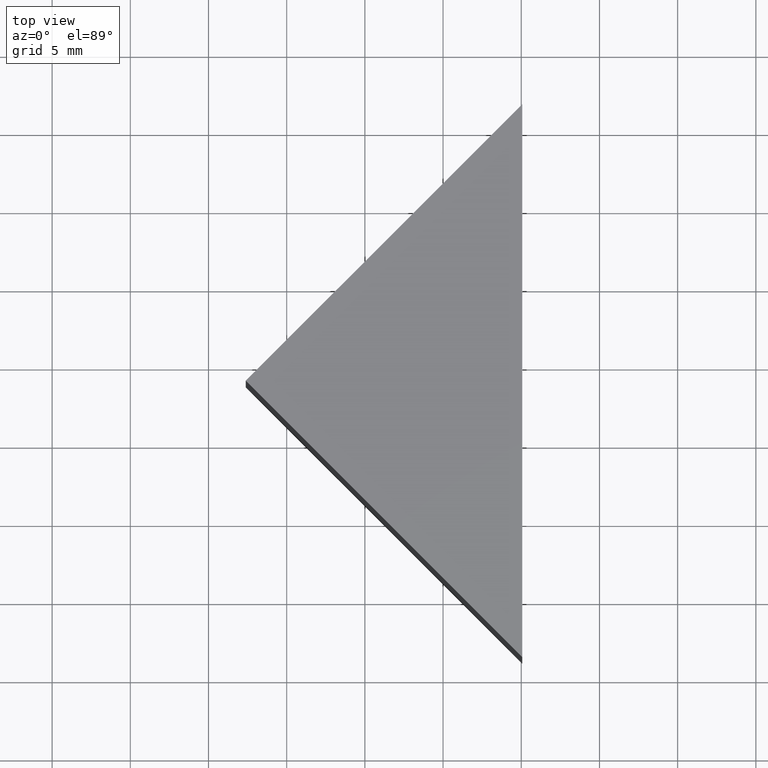
[diagram: clean part render]
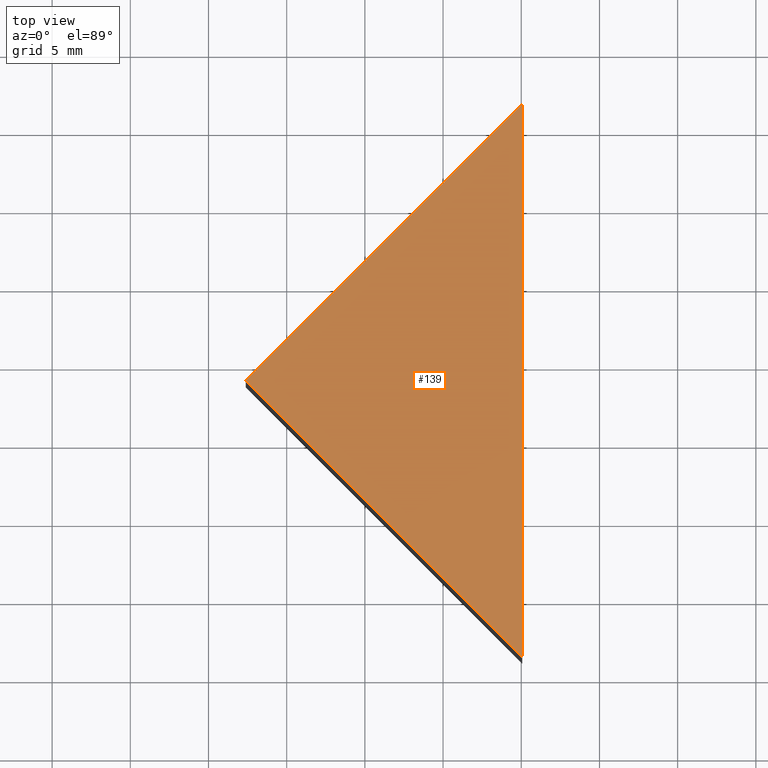
[diagram: same view with one face highlighted and labeled with its STEP entity id]
A machine part, top view. The second image highlights one B-rep face of the part: STEP entity #139.
In plain terms, the highlighted planar face has unit normal (-0, 0, 1).
Its self-contained STEP definition (entity closure, byte-faithful):
#5 = CARTESIAN_POINT ( 'NONE',  ( 0.0000000000000000000, 0.0000000000000000000, 25.00000000000000000 ) ) ;
#10 = VECTOR ( 'NONE', #84, 1000.000000000000000 ) ;
#15 = VECTOR ( 'NONE', #120, 1000.000000000000000 ) ;
#16 = VECTOR ( 'NONE', #117, 1000.000000000000100 ) ;
#24 = AXIS2_PLACEMENT_3D ( 'NONE', #5, #57, #59 ) ;
#27 = VERTEX_POINT ( 'NONE', #30 ) ;
#30 = CARTESIAN_POINT ( 'NONE',  ( 295.0610192926383200, 86.55613229383399700, 25.00000000000000000 ) ) ;
#35 = CARTESIAN_POINT ( 'NONE',  ( 295.0610192926382600, 51.20079323450661200, 25.00000000000000000 ) ) ;
#49 = FACE_OUTER_BOUND ( 'NONE', #67, .T. ) ;
#51 = LINE ( 'NONE', #85, #15 ) ;
#54 = LINE ( 'NONE', #95, #10 ) ;
#57 = DIRECTION ( 'NONE',  ( -0.0000000000000000000, 0.0000000000000000000, 1.000000000000000000 ) ) ;
#59 = DIRECTION ( 'NONE',  ( 1.000000000000000000, 0.0000000000000000000, 0.0000000000000000000 ) ) ;
#67 = EDGE_LOOP ( 'NONE', ( #77, #144, #129 ) ) ;
#69 = VERTEX_POINT ( 'NONE', #71 ) ;
#71 = CARTESIAN_POINT ( 'NONE',  ( 277.3833497629746000, 68.87846276417030800, 25.00000000000000000 ) ) ;
#77 = ORIENTED_EDGE ( 'NONE', *, *, #141, .T. ) ;
#82 = PLANE ( 'NONE',  #24 ) ;
#84 = DIRECTION ( 'NONE',  ( -0.7071067811865481300, -0.7071067811865470200, -0.0000000000000000000 ) ) ;
#85 = CARTESIAN_POINT ( 'NONE',  ( 295.0610192926382600, 51.20079323450661200, 25.00000000000000000 ) ) ;
#89 = LINE ( 'NONE', #150, #16 ) ;
#95 = CARTESIAN_POINT ( 'NONE',  ( 277.3833497629746000, 68.87846276417030800, 25.00000000000000000 ) ) ;
#116 = EDGE_CURVE ( 'NONE', #160, #27, #51, .T. ) ;
#117 = DIRECTION ( 'NONE',  ( 0.7071067811865465700, -0.7071067811865484600, 0.0000000000000000000 ) ) ;
#120 = DIRECTION ( 'NONE',  ( 1.570092458683774700E-015, 1.000000000000000000, 0.0000000000000000000 ) ) ;
#129 = ORIENTED_EDGE ( 'NONE', *, *, #142, .T. ) ;
#139 = ADVANCED_FACE ( 'NONE', ( #49 ), #82, .T. ) ;
#141 = EDGE_CURVE ( 'NONE', #69, #160, #89, .T. ) ;
#142 = EDGE_CURVE ( 'NONE', #27, #69, #54, .T. ) ;
#144 = ORIENTED_EDGE ( 'NONE', *, *, #116, .T. ) ;
#150 = CARTESIAN_POINT ( 'NONE',  ( 277.3833497629746000, 68.87846276417030800, 25.00000000000000000 ) ) ;
#160 = VERTEX_POINT ( 'NONE', #35 ) ;